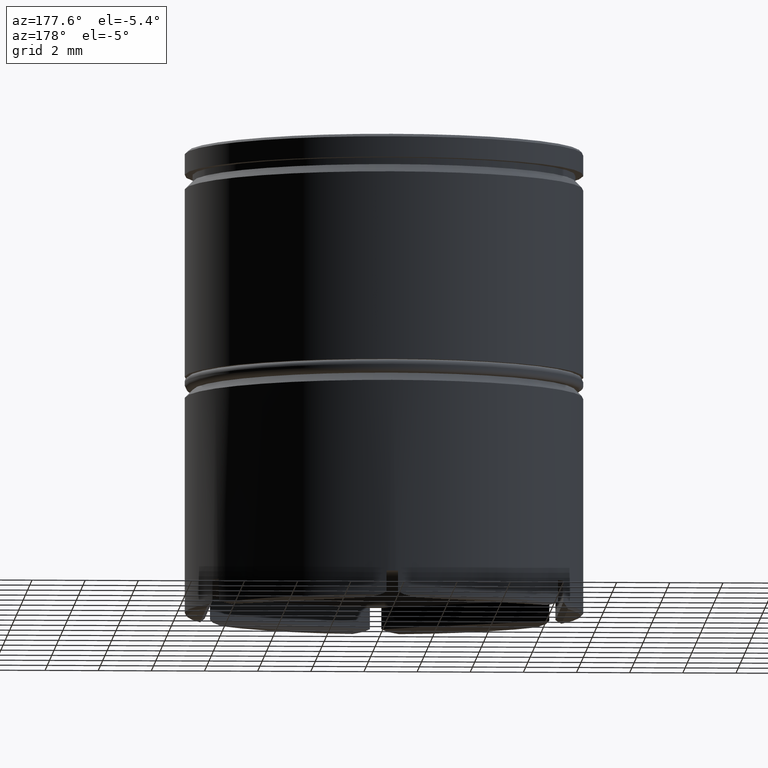
[diagram: clean part render]
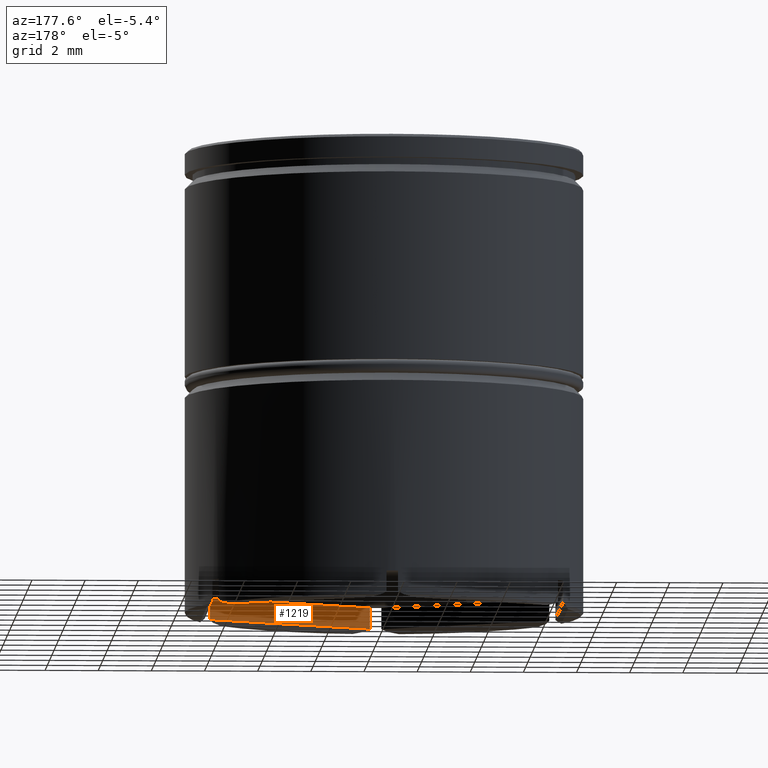
[diagram: same view with one face highlighted and labeled with its STEP entity id]
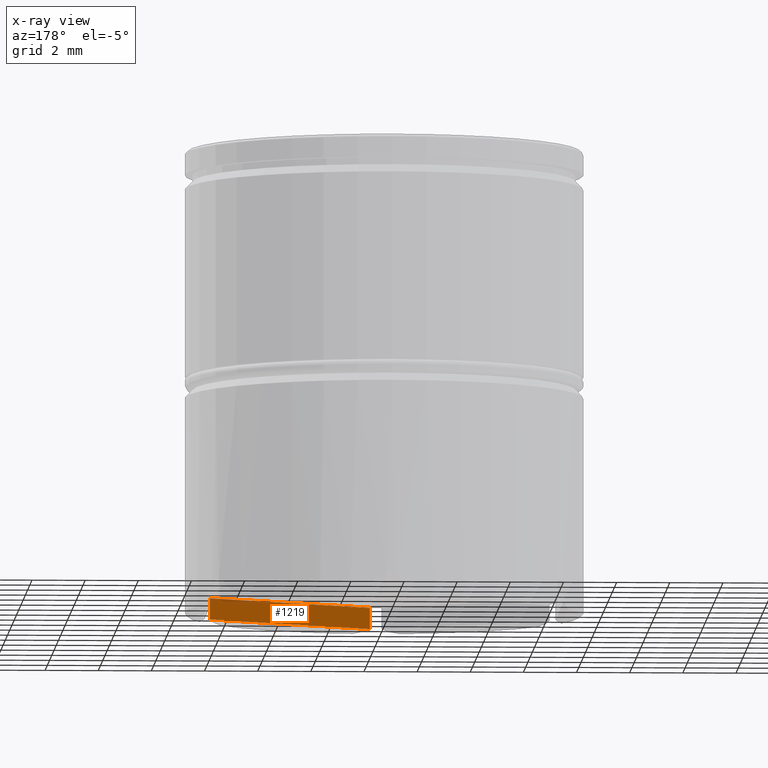
[diagram: x-ray of the same camera — body ghosted, the highlighted face saturated]
A machine part, auxiliary view. The second image highlights one B-rep face of the part: STEP entity #1219.
The next image is the same camera in x-ray: the body ghosted, the highlighted face saturated — about 4% of this face is hidden behind the body in this view.
In plain terms, the highlighted planar face has unit normal (0.5, -0.866, 0).
Its self-contained STEP definition (entity closure, byte-faithful):
#10 = VERTEX_POINT ( 'NONE', #894 ) ;
#99 = ORIENTED_EDGE ( 'NONE', *, *, #569, .T. ) ;
#111 = VECTOR ( 'NONE', #970, 1000.000000000000000 ) ;
#165 = FACE_OUTER_BOUND ( 'NONE', #1601, .T. ) ;
#231 = CARTESIAN_POINT ( 'NONE',  ( 0.2149554298195399393, -7.496918978032981684, -16.50000000000000000 ) ) ;
#270 = VECTOR ( 'NONE', #1358, 1000.000000000000000 ) ;
#274 = CARTESIAN_POINT ( 'NONE',  ( 0.4017246507621108353, -7.389087718045453279, -17.30000000000000426 ) ) ;
#314 = VECTOR ( 'NONE', #744, 1000.000000000000000 ) ;
#336 = VERTEX_POINT ( 'NONE', #514 ) ;
#377 = AXIS2_PLACEMENT_3D ( 'NONE', #1056, #1194, #1173 ) ;
#478 = ORIENTED_EDGE ( 'NONE', *, *, #933, .T. ) ;
#514 = CARTESIAN_POINT ( 'NONE',  ( 0.2149554298195399393, -7.496918978032980796, -17.30000000000000426 ) ) ;
#568 = VERTEX_POINT ( 'NONE', #919 ) ;
#569 = EDGE_CURVE ( 'NONE', #336, #1263, #1552, .T. ) ;
#644 = LINE ( 'NONE', #274, #1269 ) ;
#686 = PLANE ( 'NONE',  #377 ) ;
#744 = DIRECTION ( 'NONE',  ( -0.000000000000000000, -0.000000000000000000, 1.000000000000000000 ) ) ;
#792 = DIRECTION ( 'NONE',  ( -0.8660254037844388186, -0.4999999999999998335, 0.000000000000000000 ) ) ;
#857 = ORIENTED_EDGE ( 'NONE', *, *, #1045, .T. ) ;
#879 = CARTESIAN_POINT ( 'NONE',  ( 6.385044570180463452, -3.934616351921618627, 0.000000000000000000 ) ) ;
#894 = CARTESIAN_POINT ( 'NONE',  ( 6.385044570180463452, -3.934616351921617738, -16.50000000000000000 ) ) ;
#919 = CARTESIAN_POINT ( 'NONE',  ( 6.385044570180463452, -3.934616351921618627, -17.30000000000000426 ) ) ;
#933 = EDGE_CURVE ( 'NONE', #10, #568, #1487, .T. ) ;
#970 = DIRECTION ( 'NONE',  ( 0.000000000000000000, 0.000000000000000000, -1.000000000000000000 ) ) ;
#1001 = ORIENTED_EDGE ( 'NONE', *, *, #1288, .F. ) ;
#1045 = EDGE_CURVE ( 'NONE', #568, #336, #644, .T. ) ;
#1056 = CARTESIAN_POINT ( 'NONE',  ( 6.600000000000005862, -3.810511776651533733, -16.50000000000000000 ) ) ;
#1102 = CARTESIAN_POINT ( 'NONE',  ( 6.600000000000005862, -3.810511776651533733, -16.50000000000000000 ) ) ;
#1173 = DIRECTION ( 'NONE',  ( 0.8660254037844387076, 0.4999999999999997780, 0.000000000000000000 ) ) ;
#1178 = CARTESIAN_POINT ( 'NONE',  ( 0.2149554298195399393, -7.496918978032980796, 0.000000000000000000 ) ) ;
#1194 = DIRECTION ( 'NONE',  ( 0.4999999999999998335, -0.8660254037844388186, 0.000000000000000000 ) ) ;
#1219 = ADVANCED_FACE ( 'NONE', ( #165 ), #686, .F. ) ;
#1263 = VERTEX_POINT ( 'NONE', #231 ) ;
#1269 = VECTOR ( 'NONE', #792, 999.9999999999998863 ) ;
#1288 = EDGE_CURVE ( 'NONE', #10, #1263, #1485, .T. ) ;
#1358 = DIRECTION ( 'NONE',  ( -0.8660254037844387076, -0.4999999999999998335, 0.000000000000000000 ) ) ;
#1485 = LINE ( 'NONE', #1102, #270 ) ;
#1487 = LINE ( 'NONE', #879, #111 ) ;
#1552 = LINE ( 'NONE', #1178, #314 ) ;
#1601 = EDGE_LOOP ( 'NONE', ( #478, #857, #99, #1001 ) ) ;